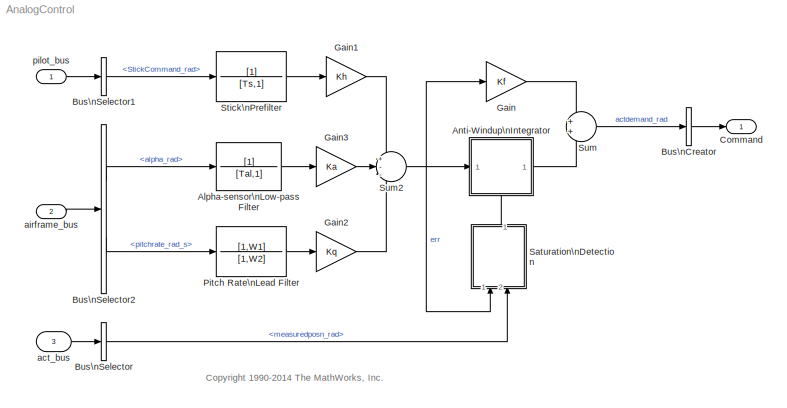
MODEL AnalogControl
KIND model
BLOCK [TransferFcn] Alpha-sensor\nLow-pass Filter
  Denominator = [Tal,1]
  SID = 4
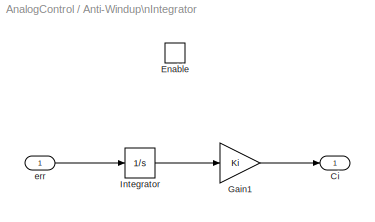
BLOCK [SubSystem] Anti-Windup\nIntegrator
  Ports = [1, 1, 1]
  RTWSystemCode = Inline
  RequestExecContextInheritance = off
  SID = 5
  TreatAsAtomicUnit = on
BLOCK [Outport] Anti-Windup\nIntegrator/Ci
  IconDisplay = Port number
  InitialOutput = 0
  SID = 10
BLOCK [EnablePort] Anti-Windup\nIntegrator/Enable
  Ports = []
  SID = 7
BLOCK [Gain] Anti-Windup\nIntegrator/Gain1
  Gain = Ki
  SID = 8
BLOCK [Integrator] Anti-Windup\nIntegrator/Integrator
  Ports = [1, 1]
  SID = 9
BLOCK [Inport] Anti-Windup\nIntegrator/err
  IconDisplay = Port number
  SID = 6
BLOCK [BusCreator] Bus\nCreator
  DisplayOption = bar
  Inputs = 1
  OutDataTypeStr = Bus: CONTROL_BUS
  Ports = [1, 1]
  SID = 11
BLOCK [BusSelector] Bus\nSelector
  OutputSignals = measuredposn_rad
  Ports = [1, 1]
  SID = 12
BLOCK [BusSelector] Bus\nSelector1
  OutputSignals = StickCommand_rad
  Ports = [1, 1]
  SID = 13
BLOCK [BusSelector] Bus\nSelector2
  OutputSignals = alpha_rad,pitchrate_rad_s
  Ports = [1, 2]
  SID = 14
BLOCK [Outport] Command
  IconDisplay = Port number
  OutDataTypeStr = Bus: CONTROL_BUS
  SID = 33
BLOCK [Gain] Gain
  Gain = Kf
  SID = 16
BLOCK [Gain] Gain1
  Gain = Kh
  SID = 35
BLOCK [Gain] Gain2
  Gain = Kq
  SID = 17
BLOCK [Gain] Gain3
  Gain = Ka
  SID = 18
BLOCK [TransferFcn] Pitch Rate\nLead Filter
  Denominator = [1,W2]
  Numerator = [1,W1]
  SID = 19
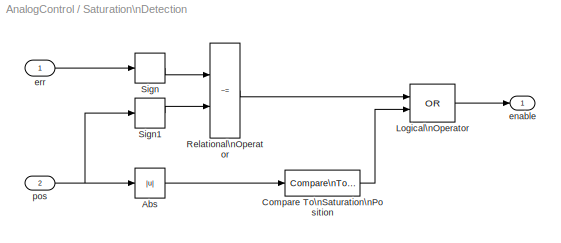
BLOCK [SubSystem] Saturation\nDetection
  Ports = [2, 1]
  RequestExecContextInheritance = off
  SID = 20
BLOCK [Abs] Saturation\nDetection/Abs
  SID = 23
  SaturateOnIntegerOverflow = off
  ZeroCross = off
BLOCK [Reference] Saturation\nDetection/Compare To\nSaturation\nPosition  REF=simulink/Logic and Bit\nOperations/Compare\nTo Constant
  OutDataTypeStr = boolean
  Ports = [1, 1]
  SID = 24
  SourceBlock = simulink/Logic and Bit\nOperations/Compare\nTo Constant
  SourceType = Compare To Constant
  ZeroCross = off
  const = 0.785398
  relop = <
BLOCK [Logic] Saturation\nDetection/Logical\nOperator
  AllPortsSameDT = off
  Operator = OR
  OutDataTypeStr = boolean
  Ports = [2, 1]
  SID = 25
BLOCK [RelationalOperator] Saturation\nDetection/Relational\nOperator
  InputSameDT = off
  Operator = ~=
  OutDataTypeStr = boolean
  Ports = [2, 1]
  SID = 26
  ZeroCross = off
BLOCK [Signum] Saturation\nDetection/Sign
  SID = 27
  ZeroCross = off
BLOCK [Signum] Saturation\nDetection/Sign1
  SID = 28
  ZeroCross = off
BLOCK [Outport] Saturation\nDetection/enable
  IconDisplay = Port number
  SID = 29
BLOCK [Inport] Saturation\nDetection/err
  IconDisplay = Port number
  SID = 21
BLOCK [Inport] Saturation\nDetection/pos
  IconDisplay = Port number
  Port = 2
  SID = 22
BLOCK [TransferFcn] Stick\nPrefilter
  Denominator = [Ts,1]
  SID = 30
BLOCK [Sum] Sum
  IconShape = round
  Inputs = 2
  Ports = [2, 1]
  SID = 31
BLOCK [Sum] Sum2
  IconShape = round
  Inputs = +--
  Ports = [3, 1]
  SID = 32
BLOCK [Inport] act_bus
  IconDisplay = Port number
  OutDataTypeStr = Bus: ACT_BUS
  Port = 3
  SID = 3
BLOCK [Inport] airframe_bus
  IconDisplay = Port number
  OutDataTypeStr = Bus: AIRFRAME_BUS
  Port = 2
  SID = 2
BLOCK [Inport] pilot_bus
  IconDisplay = Port number
  OutDataTypeStr = Bus: PILOT_BUS
  SID = 1
ANNOTATION (root): <copyright redacted>
LINE Alpha-sensor\nLow-pass Filter:1 -> Gain3:1
LINE Anti-Windup\nIntegrator/Gain1:1 -> Anti-Windup\nIntegrator/Ci:1
LINE Anti-Windup\nIntegrator/Integrator:1 -> Anti-Windup\nIntegrator/Gain1:1
LINE Anti-Windup\nIntegrator/err:1 -> Anti-Windup\nIntegrator/Integrator:1
LINE Anti-Windup\nIntegrator:1 -> Sum:2
LINE Bus\nCreator:1 -> Command:1
LINE Bus\nSelector1:1 -> Stick\nPrefilter:1
LINE Bus\nSelector2:1 -> Alpha-sensor\nLow-pass Filter:1
LINE Bus\nSelector2:2 -> Pitch Rate\nLead Filter:1
LINE Bus\nSelector:1 -> Saturation\nDetection:2
LINE Gain1:1 -> Sum2:1
LINE Gain2:1 -> Sum2:3
LINE Gain3:1 -> Sum2:2
LINE Gain:1 -> Sum:1
LINE Pitch Rate\nLead Filter:1 -> Gain2:1
LINE Saturation\nDetection/Abs:1 -> Saturation\nDetection/Compare To\nSaturation\nPosition:1
LINE Saturation\nDetection/Compare To\nSaturation\nPosition:1 -> Saturation\nDetection/Logical\nOperator:2
LINE Saturation\nDetection/Logical\nOperator:1 -> Saturation\nDetection/enable:1
LINE Saturation\nDetection/Relational\nOperator:1 -> Saturation\nDetection/Logical\nOperator:1
LINE Saturation\nDetection/Sign1:1 -> Saturation\nDetection/Relational\nOperator:2
LINE Saturation\nDetection/Sign:1 -> Saturation\nDetection/Relational\nOperator:1
LINE Saturation\nDetection/err:1 -> Saturation\nDetection/Sign:1
NET Saturation\nDetection/pos:1 -> Saturation\nDetection/Abs:1, Saturation\nDetection/Sign1:1
LINE Saturation\nDetection:1 -> Anti-Windup\nIntegrator:enable
LINE Stick\nPrefilter:1 -> Gain1:1
NET Sum2:1 -> Anti-Windup\nIntegrator:1, Gain:1, Saturation\nDetection:1
LINE Sum:1 -> Bus\nCreator:1
LINE act_bus:1 -> Bus\nSelector:1
LINE airframe_bus:1 -> Bus\nSelector2:1
LINE pilot_bus:1 -> Bus\nSelector1:1
note: NET lines group one-source signal fan-out (src -> all destinations, sorted); 1:1 wires keep LINE
